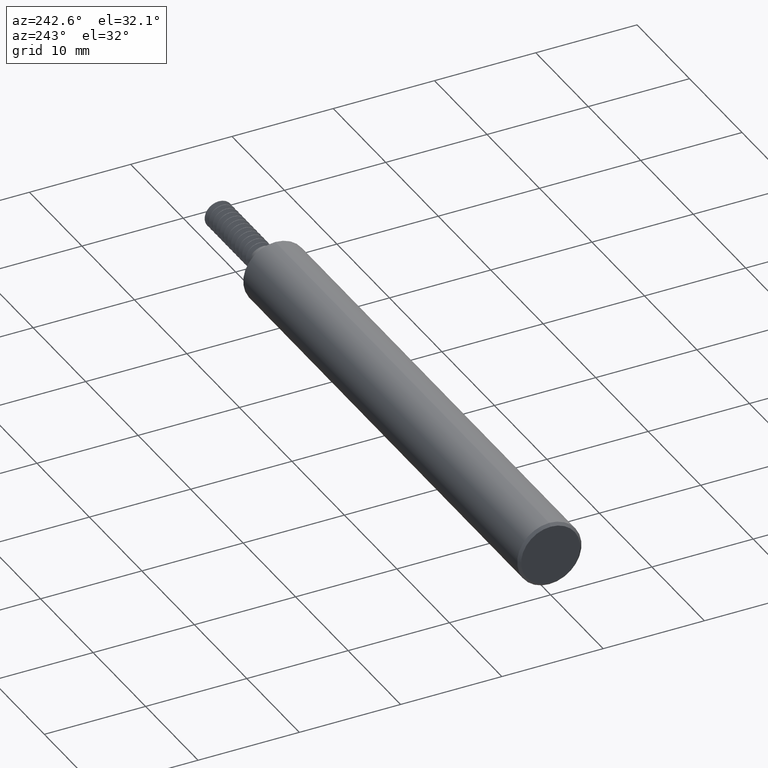
[diagram: clean part render]
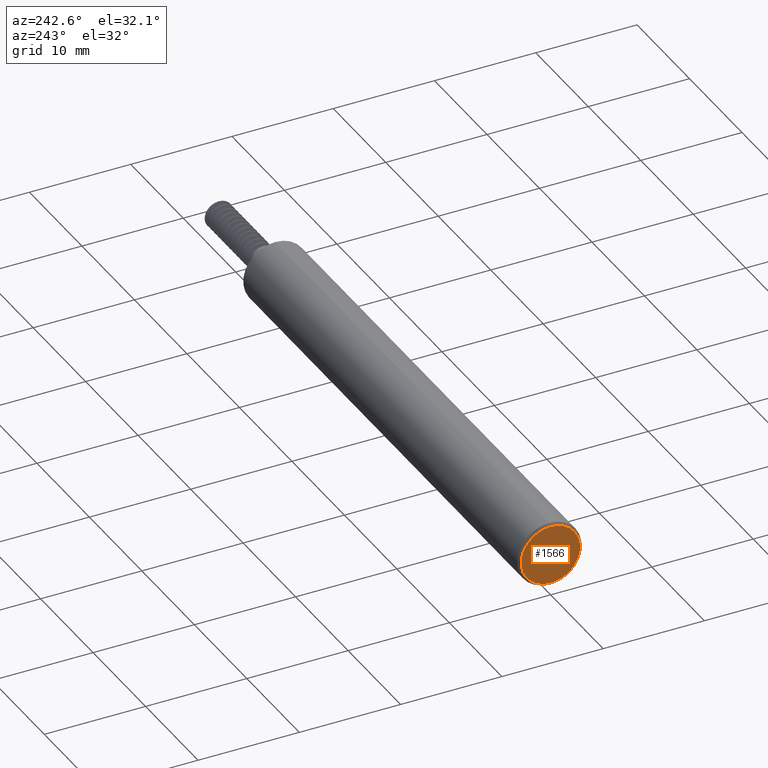
[diagram: same view with one face highlighted and labeled with its STEP entity id]
A machine part, auxiliary view. The second image highlights one B-rep face of the part: STEP entity #1566.
In plain terms, the highlighted planar face has unit normal (1, 0, 0).
Its self-contained STEP definition (entity closure, byte-faithful):
#60 = CIRCLE ( 'NONE', #420, 0.1148500000000000076 ) ;
#116 = VERTEX_POINT ( 'NONE', #939 ) ;
#124 = ORIENTED_EDGE ( 'NONE', *, *, #1208, .T. ) ;
#286 = DIRECTION ( 'NONE',  ( 0.000000000000000000, 0.000000000000000000, -1.000000000000000000 ) ) ;
#393 = DIRECTION ( 'NONE',  ( 0.000000000000000000, 0.000000000000000000, -1.000000000000000000 ) ) ;
#420 = AXIS2_PLACEMENT_3D ( 'NONE', #2223, #2503, #286 ) ;
#568 = EDGE_CURVE ( 'NONE', #2463, #116, #60, .T. ) ;
#619 = CARTESIAN_POINT ( 'NONE',  ( 0.000000000000000000, 0.000000000000000000, -0.1148500000000000076 ) ) ;
#939 = CARTESIAN_POINT ( 'NONE',  ( 0.000000000000000000, 1.467739188778102897E-17, 0.1148500000000000076 ) ) ;
#1208 = EDGE_CURVE ( 'NONE', #116, #2463, #1798, .T. ) ;
#1253 = CARTESIAN_POINT ( 'NONE',  ( 0.000000000000000000, 0.000000000000000000, 0.000000000000000000 ) ) ;
#1440 = PLANE ( 'NONE',  #1851 ) ;
#1453 = DIRECTION ( 'NONE',  ( 1.000000000000000000, 0.000000000000000000, 0.000000000000000000 ) ) ;
#1539 = CARTESIAN_POINT ( 'NONE',  ( 0.000000000000000000, 0.000000000000000000, 0.000000000000000000 ) ) ;
#1566 = ADVANCED_FACE ( 'NONE', ( #2372 ), #1440, .F. ) ;
#1798 = CIRCLE ( 'NONE', #2731, 0.1148500000000000076 ) ;
#1851 = AXIS2_PLACEMENT_3D ( 'NONE', #1253, #1453, #2124 ) ;
#2124 = DIRECTION ( 'NONE',  ( 0.000000000000000000, 0.000000000000000000, -1.000000000000000000 ) ) ;
#2223 = CARTESIAN_POINT ( 'NONE',  ( 0.000000000000000000, 0.000000000000000000, 0.000000000000000000 ) ) ;
#2372 = FACE_OUTER_BOUND ( 'NONE', #2760, .T. ) ;
#2463 = VERTEX_POINT ( 'NONE', #619 ) ;
#2503 = DIRECTION ( 'NONE',  ( -1.000000000000000000, -0.000000000000000000, -0.000000000000000000 ) ) ;
#2588 = ORIENTED_EDGE ( 'NONE', *, *, #568, .T. ) ;
#2731 = AXIS2_PLACEMENT_3D ( 'NONE', #1539, #2799, #393 ) ;
#2760 = EDGE_LOOP ( 'NONE', ( #2588, #124 ) ) ;
#2799 = DIRECTION ( 'NONE',  ( -1.000000000000000000, -0.000000000000000000, -0.000000000000000000 ) ) ;